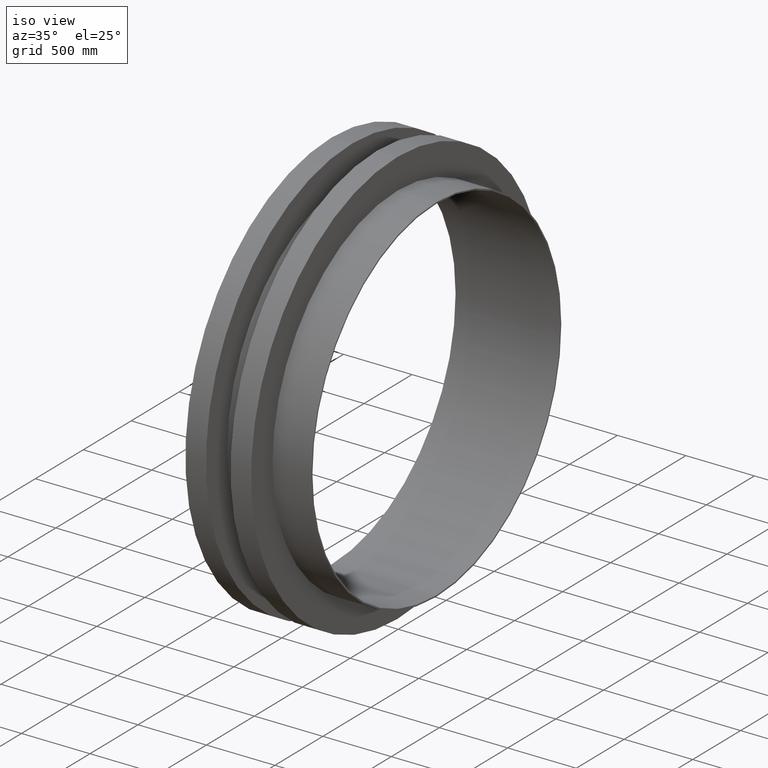
[diagram: clean part render]
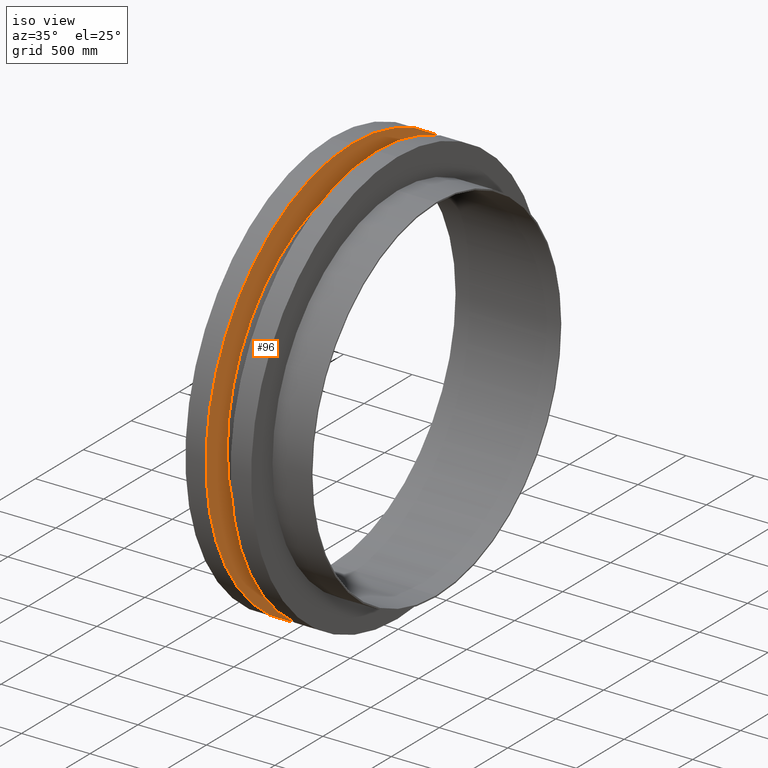
[diagram: same view with one face highlighted and labeled with its STEP entity id]
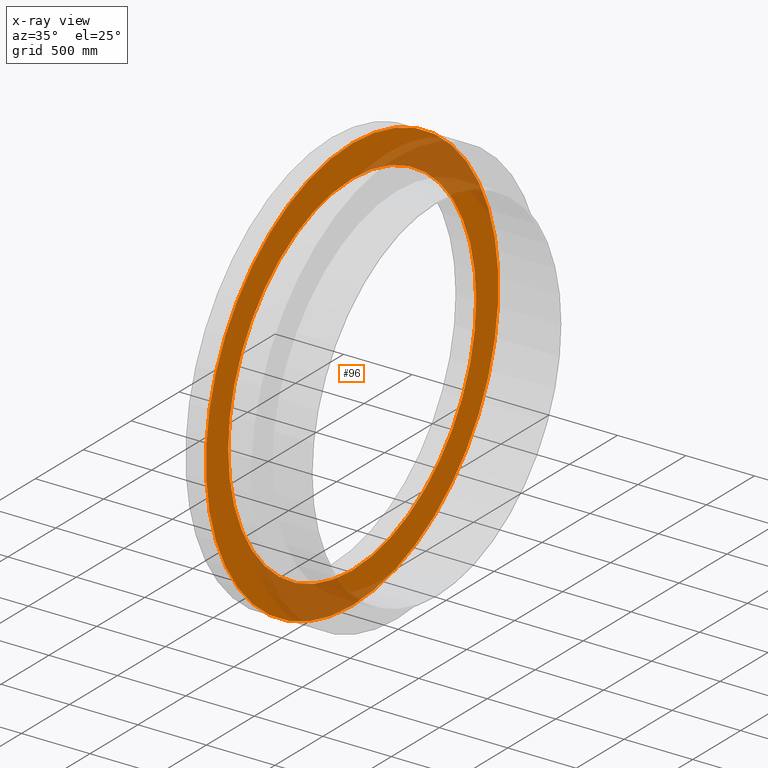
[diagram: x-ray of the same camera — body ghosted, the highlighted face saturated]
A machine part, iso view. The second image highlights one B-rep face of the part: STEP entity #96.
The next image is the same camera in x-ray: the body ghosted, the highlighted face saturated — about 22% of this face is hidden behind the body in this view.
In plain terms, the highlighted planar face has unit normal (1, 0, 0).
Its self-contained STEP definition (entity closure, byte-faithful):
#12 = EDGE_CURVE ( 'NONE', #494, #549, #637, .T. ) ;
#13 = CIRCLE ( 'NONE', #572, 1525.000000000000000 ) ;
#29 = EDGE_LOOP ( 'NONE', ( #571, #686 ) ) ;
#40 = ORIENTED_EDGE ( 'NONE', *, *, #12, .F. ) ;
#53 = CARTESIAN_POINT ( 'NONE',  ( -1239.999999999999773, 114.4108509701294309, -71.23161608200025796 ) ) ;
#79 = AXIS2_PLACEMENT_3D ( 'NONE', #218, #438, #592 ) ;
#96 = ADVANCED_FACE ( 'NONE', ( #410, #466 ), #104, .T. ) ;
#104 = PLANE ( 'NONE',  #563 ) ;
#107 = DIRECTION ( 'NONE',  ( 0.000000000000000000, 0.000000000000000000, -1.000000000000000000 ) ) ;
#115 = ORIENTED_EDGE ( 'NONE', *, *, #560, .F. ) ;
#136 = CARTESIAN_POINT ( 'NONE',  ( -1239.999999999999773, 114.4108509701294309, -71.23161608200025796 ) ) ;
#145 = VERTEX_POINT ( 'NONE', #646 ) ;
#218 = CARTESIAN_POINT ( 'NONE',  ( -1239.999999999999773, 114.4108509701294309, -71.23161608200025796 ) ) ;
#255 = CARTESIAN_POINT ( 'NONE',  ( -1239.999999999999773, 114.4108509701294309, -71.23161608200025796 ) ) ;
#274 = DIRECTION ( 'NONE',  ( 0.000000000000000000, 0.000000000000000000, -1.000000000000000000 ) ) ;
#309 = CIRCLE ( 'NONE', #79, 1525.000000000000000 ) ;
#321 = CARTESIAN_POINT ( 'NONE',  ( -1239.999999999999773, 114.4108509701294309, -71.23161608200025796 ) ) ;
#337 = EDGE_CURVE ( 'NONE', #145, #381, #309, .T. ) ;
#338 = CARTESIAN_POINT ( 'NONE',  ( -1239.999999999999773, 114.4108509701295873, 1221.268383917999699 ) ) ;
#349 = CARTESIAN_POINT ( 'NONE',  ( -1239.999999999999773, 114.4108509701294309, -1363.731616082000301 ) ) ;
#358 = DIRECTION ( 'NONE',  ( 1.000000000000000000, 0.000000000000000000, 0.000000000000000000 ) ) ;
#361 = EDGE_CURVE ( 'NONE', #381, #145, #13, .T. ) ;
#381 = VERTEX_POINT ( 'NONE', #479 ) ;
#410 = FACE_BOUND ( 'NONE', #624, .T. ) ;
#417 = AXIS2_PLACEMENT_3D ( 'NONE', #53, #579, #107 ) ;
#419 = DIRECTION ( 'NONE',  ( 0.000000000000000000, 0.000000000000000000, -1.000000000000000000 ) ) ;
#438 = DIRECTION ( 'NONE',  ( 1.000000000000000000, 0.000000000000000000, 0.000000000000000000 ) ) ;
#466 = FACE_OUTER_BOUND ( 'NONE', #29, .T. ) ;
#479 = CARTESIAN_POINT ( 'NONE',  ( -1239.999999999999773, 114.4108509701294309, -1596.231616082000301 ) ) ;
#494 = VERTEX_POINT ( 'NONE', #338 ) ;
#535 = DIRECTION ( 'NONE',  ( 1.000000000000000000, 0.000000000000000000, 0.000000000000000000 ) ) ;
#549 = VERTEX_POINT ( 'NONE', #349 ) ;
#560 = EDGE_CURVE ( 'NONE', #549, #494, #633, .T. ) ;
#563 = AXIS2_PLACEMENT_3D ( 'NONE', #255, #358, #419 ) ;
#567 = DIRECTION ( 'NONE',  ( 0.000000000000000000, 0.000000000000000000, -1.000000000000000000 ) ) ;
#571 = ORIENTED_EDGE ( 'NONE', *, *, #361, .T. ) ;
#572 = AXIS2_PLACEMENT_3D ( 'NONE', #321, #535, #274 ) ;
#579 = DIRECTION ( 'NONE',  ( 1.000000000000000000, 0.000000000000000000, 0.000000000000000000 ) ) ;
#592 = DIRECTION ( 'NONE',  ( 0.000000000000000000, 0.000000000000000000, -1.000000000000000000 ) ) ;
#622 = DIRECTION ( 'NONE',  ( 1.000000000000000000, 0.000000000000000000, 0.000000000000000000 ) ) ;
#624 = EDGE_LOOP ( 'NONE', ( #115, #40 ) ) ;
#633 = CIRCLE ( 'NONE', #643, 1292.500000000000000 ) ;
#637 = CIRCLE ( 'NONE', #417, 1292.500000000000000 ) ;
#643 = AXIS2_PLACEMENT_3D ( 'NONE', #136, #622, #567 ) ;
#646 = CARTESIAN_POINT ( 'NONE',  ( -1239.999999999999773, 114.4108509701296157, 1453.768383917999472 ) ) ;
#686 = ORIENTED_EDGE ( 'NONE', *, *, #337, .T. ) ;